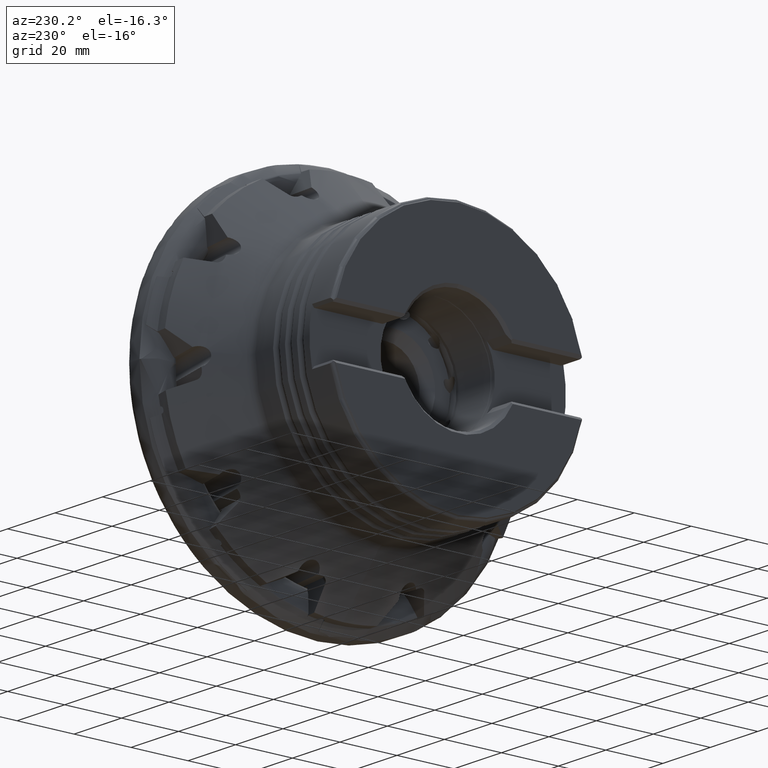
[diagram: clean part render]
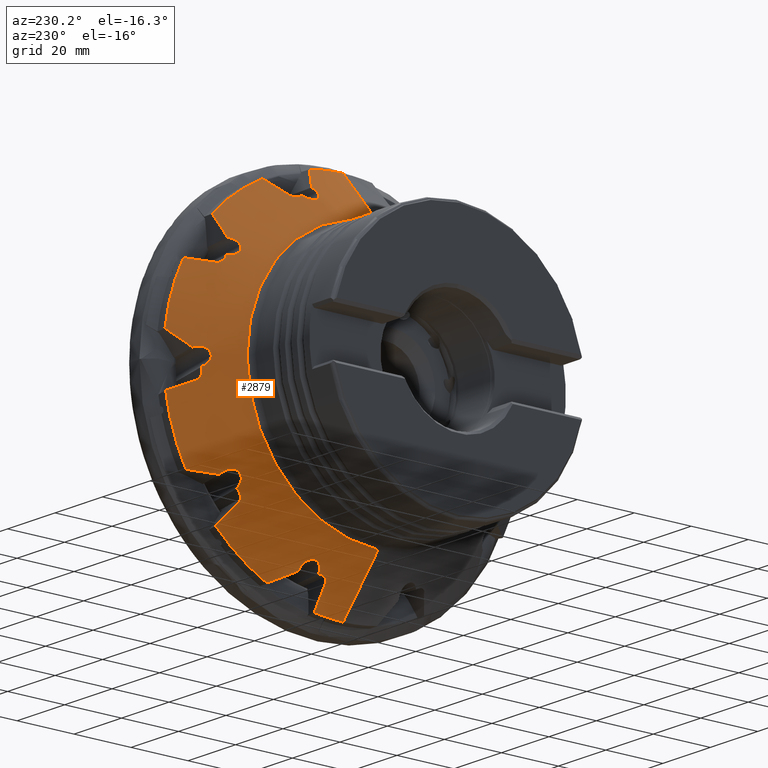
[diagram: same view with one face highlighted and labeled with its STEP entity id]
A machine part, auxiliary view. The second image highlights one B-rep face of the part: STEP entity #2879.
In plain terms, the highlighted conical surface has half-angle 49.034 deg.
Its self-contained STEP definition (entity closure, byte-faithful):
#65 = CARTESIAN_POINT ( 'NONE',  ( -21.74386118651283800, 16.04339773294403300, 50.91453725431838300 ) ) ;
#82 = B_SPLINE_CURVE_WITH_KNOTS ( 'NONE', 3,
 ( #12270, #8859, #3894, #15639 ),
 .UNSPECIFIED., .F., .F.,
 ( 4, 4 ),
 ( 3.121339337097913300E-007, 0.008827418438833294400 ),
 .UNSPECIFIED. ) ;
#109 = CARTESIAN_POINT ( 'NONE',  ( -13.35000000000000700, 0.0000000000000000000, -63.04999999999999700 ) ) ;
#136 = CARTESIAN_POINT ( 'NONE',  ( -19.89859256043911600, 14.61271218791838900, 53.54961580335304200 ) ) ;
#198 = CIRCLE ( 'NONE', #13339, 63.04999999999999700 ) ;
#209 = CARTESIAN_POINT ( 'NONE',  ( -19.90231856544033200, 41.52883945057612200, -36.82389208063981600 ) ) ;
#217 = CARTESIAN_POINT ( 'NONE',  ( -20.69135371984313600, 45.65459946876526200, 29.93691832556922000 ) ) ;
#230 = CARTESIAN_POINT ( 'NONE',  ( -19.20941039479254200, 55.91383833153550900, -6.594989782057939300 ) ) ;
#375 = CARTESIAN_POINT ( 'NONE',  ( -21.65841679445749400, 43.82773945495456000, 30.64882635201971800 ) ) ;
#440 = CARTESIAN_POINT ( 'NONE',  ( -20.63857241371391300, 42.80432881129125600, 33.98529018487500500 ) ) ;
#454 = CARTESIAN_POINT ( 'NONE',  ( -18.44073334643139000, 19.96071030435146200, -53.59000000000000300 ) ) ;
#507 = CARTESIAN_POINT ( 'NONE',  ( -13.35000000000000500, 44.79286903829155600, -44.37230423719803000 ) ) ;
#516 = CARTESIAN_POINT ( 'NONE',  ( -19.97434015540164900, 46.60667325391509100, 29.98721195677843800 ) ) ;
#534 = CARTESIAN_POINT ( 'NONE',  ( -13.35000000000001400, 56.04232684746164500, 28.88875389355310100 ) ) ;
#606 = VERTEX_POINT ( 'NONE', #9968 ) ;
#704 = CARTESIAN_POINT ( 'NONE',  ( -21.34086828716044300, 14.95440484867446600, -51.72850538226266100 ) ) ;
#720 = VERTEX_POINT ( 'NONE', #15776 ) ;
#752 = CARTESIAN_POINT ( 'NONE',  ( -19.97521079024968700, 42.92125795258418500, -35.05808526701827800 ) ) ;
#777 = CARTESIAN_POINT ( 'NONE',  ( -20.88982359493613600, 18.82371701613425000, -51.00330926966702800 ) ) ;
#829 = CARTESIAN_POINT ( 'NONE',  ( -20.90633496719939900, 42.51784085894156800, -33.85018861386016200 ) ) ;
#905 = CARTESIAN_POINT ( 'NONE',  ( -21.45821655185690000, 44.25871251706696100, -30.43181215891734200 ) ) ;
#948 = EDGE_LOOP ( 'NONE', ( #6383, #9013, #3974, #6417, #11046, #12414, #12389, #19420, #16570, #19164, #3589, #14215, #16195, #17394, #6657, #4590, #13672, #6851, #10019, #21547, #15287, #8376, #19086, #1160, #18291, #2234, #4838, #11149, #2415, #11744, #12659, #2381, #10503, #17223, #12007 ) ) ;
#1020 = CARTESIAN_POINT ( 'NONE',  ( -18.99064713345593300, 10.94954749432682900, -55.48320528741383100 ) ) ;
#1049 = VERTEX_POINT ( 'NONE', #18720 ) ;
#1086 = CARTESIAN_POINT ( 'NONE',  ( -20.03612008597187000, 13.77108990478864400, -53.60974634019604700 ) ) ;
#1160 = ORIENTED_EDGE ( 'NONE', *, *, #13433, .F. ) ;
#1198 = CIRCLE ( 'NONE', #20708, 63.04999999999999700 ) ;
#1299 = CARTESIAN_POINT ( 'NONE',  ( -13.35000000000000700, 0.0000000000000000000, 0.0000000000000000000 ) ) ;
#1303 = CARTESIAN_POINT ( 'NONE',  ( -20.52743768481045400, 54.71331254012212500, -2.770098029617899200 ) ) ;
#1344 = CARTESIAN_POINT ( 'NONE',  ( -19.97434015539970900, 14.11727925027747900, -53.59213840954560500 ) ) ;
#1363 = EDGE_CURVE ( 'NONE', #16347, #12104, #7236, .T. ) ;
#1370 = CARTESIAN_POINT ( 'NONE',  ( -21.72556196952026000, 53.40028063948220400, 0.5834179072206208100 ) ) ;
#1434 = B_SPLINE_CURVE_WITH_KNOTS ( 'NONE', 3,
 ( #3715, #5394, #17113, #7056 ),
 .UNSPECIFIED., .F., .F.,
 ( 4, 4 ),
 ( 0.002835019765368307600, 0.01203914730048213400 ),
 .UNSPECIFIED. ) ;
#1444 = CARTESIAN_POINT ( 'NONE',  ( -19.00710511929069900, 56.47190637251164700, 2.657156614032025300 ) ) ;
#1475 = CARTESIAN_POINT ( 'NONE',  ( -19.50004621453662400, 48.67981456278803900, 27.61437426249561600 ) ) ;
#1630 = VERTEX_POINT ( 'NONE', #20190 ) ;
#1642 = CARTESIAN_POINT ( 'NONE',  ( -13.35000000000000700, 0.0000000000000000000, 0.0000000000000000000 ) ) ;
#1651 = VERTEX_POINT ( 'NONE', #18244 ) ;
#1665 = CARTESIAN_POINT ( 'NONE',  ( -20.53561337606202700, 19.55076632876013700, 51.16647226779763000 ) ) ;
#1737 = EDGE_CURVE ( 'NONE', #8037, #7493, #6301, .T. ) ;
#1738 = CARTESIAN_POINT ( 'NONE',  ( -21.67668078558977700, 15.75528947944783000, 51.08539341113733900 ) ) ;
#1755 = CARTESIAN_POINT ( 'NONE',  ( -13.35000000000000700, 0.0000000000000000000, 0.0000000000000000000 ) ) ;
#1787 = CARTESIAN_POINT ( 'NONE',  ( -13.35000000000000100, 28.35881132817450000, 56.31234607129241000 ) ) ;
#1812 = CARTESIAN_POINT ( 'NONE',  ( -19.45252994709590100, 14.72935181097812100, 54.05032820218441700 ) ) ;
#1881 = CARTESIAN_POINT ( 'NONE',  ( -20.05983047317410600, 41.95095860176537200, -36.06593345004337400 ) ) ;
#1912 = CARTESIAN_POINT ( 'NONE',  ( -19.50004621453663100, 55.61411920709631600, -6.272779016950154100 ) ) ;
#1973 = B_SPLINE_CURVE_WITH_KNOTS ( 'NONE', 3,
 ( #13109, #12973, #16476, #6427 ),
 .UNSPECIFIED., .F., .F.,
 ( 4, 4 ),
 ( 0.01047602364731866700, 0.01048017639563251900 ),
 .UNSPECIFIED. ) ;
#2059 = CARTESIAN_POINT ( 'NONE',  ( -21.76737282378240600, 43.38731384836916000, 31.05412848423777200 ) ) ;
#2065 = CARTESIAN_POINT ( 'NONE',  ( -18.44073334643135500, 15.35085781433787000, 55.08783187073371600 ) ) ;
#2129 = CARTESIAN_POINT ( 'NONE',  ( -20.25928515037768200, 43.03146642781197100, 34.40119159271462500 ) ) ;
#2234 = ORIENTED_EDGE ( 'NONE', *, *, #8583, .F. ) ;
#2280 = CARTESIAN_POINT ( 'NONE',  ( -19.97434015540404300, 42.92178742375660500, -35.05902219240437700 ) ) ;
#2282 = DIRECTION ( 'NONE',  ( 0.6556070404901761500, 0.0000000000000000000, -0.7551022503341601200 ) ) ;
#2324 = VERTEX_POINT ( 'NONE', #17303 ) ;
#2335 = VECTOR ( 'NONE', #2282, 1000.000000000000000 ) ;
#2366 = CARTESIAN_POINT ( 'NONE',  ( -21.59155068313034000, 15.41533070848855200, -51.29170582731968200 ) ) ;
#2381 = ORIENTED_EDGE ( 'NONE', *, *, #12171, .F. ) ;
#2397 = VERTEX_POINT ( 'NONE', #6478 ) ;
#2415 = ORIENTED_EDGE ( 'NONE', *, *, #13092, .F. ) ;
#2437 = CARTESIAN_POINT ( 'NONE',  ( -20.48162059219455600, 19.24186106007117700, -51.34932930359635600 ) ) ;
#2502 = CARTESIAN_POINT ( 'NONE',  ( -21.23961793296908600, 42.49072575660184700, -33.26518153594526700 ) ) ;
#2563 = CARTESIAN_POINT ( 'NONE',  ( -21.13836656907219300, 44.83157954097322300, -30.24492683833995300 ) ) ;
#2581 = CARTESIAN_POINT ( 'NONE',  ( -15.08684794427566100, 45.60185275322876200, 40.61920425478874800 ) ) ;
#2768 = CARTESIAN_POINT ( 'NONE',  ( -19.40841971096545000, 23.29505547001471300, 51.00425811413801100 ) ) ;
#2791 = EDGE_CURVE ( 'NONE', #20985, #16313, #9688, .T. ) ;
#2829 = CARTESIAN_POINT ( 'NONE',  ( -16.78890962292948400, 14.17466574591519700, 57.39058254429944100 ) ) ;
#2862 = VERTEX_POINT ( 'NONE', #16366 ) ;
#2879 = ADVANCED_FACE ( 'NONE', ( #3637 ), #16497, .T. ) ;
#2885 = DIRECTION ( 'NONE',  ( 0.6556070404901761500, 9.247335539006924900E-017, 0.7551022503341601200 ) ) ;
#2951 = AXIS2_PLACEMENT_3D ( 'NONE', #13899, #3860, #15602 ) ;
#2966 = CARTESIAN_POINT ( 'NONE',  ( -20.90982845360525400, 54.29044625568258900, -2.390088407942447800 ) ) ;
#2974 = CARTESIAN_POINT ( 'NONE',  ( -19.97434015540198600, 20.07954976813440200, 51.65487928402242800 ) ) ;
#3040 = CARTESIAN_POINT ( 'NONE',  ( -21.64754709247094400, 53.48563702216268500, 0.9059112994876618000 ) ) ;
#3105 = CARTESIAN_POINT ( 'NONE',  ( -18.44073334643135100, 57.13531741209702400, 2.423542876279996000 ) ) ;
#3136 = CARTESIAN_POINT ( 'NONE',  ( -19.73284088392446000, 48.25366821558832700, 27.81956612474707700 ) ) ;
#3269 = CARTESIAN_POINT ( 'NONE',  ( -19.97608142302276900, 20.07809486054620500, 51.65329311670095800 ) ) ;
#3281 = B_SPLINE_CURVE_WITH_KNOTS ( 'NONE', 3,
 ( #14561, #2829, #17895, #7845 ),
 .UNSPECIFIED., .F., .F.,
 ( 4, 4 ),
 ( 0.002286285594767394900, 0.01149046612284418700 ),
 .UNSPECIFIED. ) ;
#3317 = DIRECTION ( 'NONE',  ( 0.0000000000000000000, 0.0000000000000000000, -1.000000000000000000 ) ) ;
#3339 = CARTESIAN_POINT ( 'NONE',  ( -21.02415140546714800, 18.87761035921077400, 50.81845775117771100 ) ) ;
#3399 = CARTESIAN_POINT ( 'NONE',  ( -21.54487732028242800, 15.41267720426602500, 51.34860011372974500 ) ) ;
#3415 = DIRECTION ( 'NONE',  ( 0.0000000000000000000, 0.0000000000000000000, -1.000000000000000000 ) ) ;
#3445 = DIRECTION ( 'NONE',  ( 1.000000000000000000, -0.0000000000000000000, -0.0000000000000000000 ) ) ;
#3473 = CARTESIAN_POINT ( 'NONE',  ( -19.01147160084910200, 14.93684362539066700, 54.52026838322175500 ) ) ;
#3507 = CARTESIAN_POINT ( 'NONE',  ( -19.97608142302275500, 42.92072848016083200, -35.05714834040598800 ) ) ;
#3508 = EDGE_CURVE ( 'NONE', #6055, #18425, #15168, .T. ) ;
#3526 = CARTESIAN_POINT ( 'NONE',  ( -18.44073334643136200, 47.64796552636914800, -31.62260958637319100 ) ) ;
#3533 = B_SPLINE_CURVE_WITH_KNOTS ( 'NONE', 3,
 ( #13009, #2974, #4644, #16380 ),
 .UNSPECIFIED., .F., .F.,
 ( 4, 4 ),
 ( 0.01047601585579586800, 0.01048016861513262900 ),
 .UNSPECIFIED. ) ;
#3552 = CARTESIAN_POINT ( 'NONE',  ( -20.03612008597185900, 42.65206404194696400, -35.27675229932018700 ) ) ;
#3578 = CARTESIAN_POINT ( 'NONE',  ( -19.73284088392446700, 55.38996832064278000, -5.856292775078964400 ) ) ;
#3589 = ORIENTED_EDGE ( 'NONE', *, *, #6739, .F. ) ;
#3634 = CARTESIAN_POINT ( 'NONE',  ( -20.69135371984313600, 45.65459946876526200, 29.93691832556922000 ) ) ;
#3637 = FACE_OUTER_BOUND ( 'NONE', #948, .T. ) ;
#3711 = CARTESIAN_POINT ( 'NONE',  ( -21.77648194941602700, 43.02601140273384300, 31.53506828006258200 ) ) ;
#3715 = CARTESIAN_POINT ( 'NONE',  ( -18.44073334643136200, 47.64796552636914800, -31.62260958637319100 ) ) ;
#3790 = CARTESIAN_POINT ( 'NONE',  ( -19.86966198548530500, 43.32155495392783000, 34.75681893210628500 ) ) ;
#3860 = DIRECTION ( 'NONE',  ( 1.000000000000000000, -0.0000000000000000000, -0.0000000000000000000 ) ) ;
#3867 = CARTESIAN_POINT ( 'NONE',  ( -19.97608142302276200, 46.60456388319135400, 29.98678389368314600 ) ) ;
#3894 = CARTESIAN_POINT ( 'NONE',  ( -17.11612810928735900, 10.68610102600469600, -57.73583418795109200 ) ) ;
#3974 = ORIENTED_EDGE ( 'NONE', *, *, #8924, .F. ) ;
#4037 = CARTESIAN_POINT ( 'NONE',  ( -21.74792170244602100, 15.97403961193364500, -50.93180896222644100 ) ) ;
#4092 = CARTESIAN_POINT ( 'NONE',  ( -18.99064713345593300, 10.94954749432682900, -55.48320528741383100 ) ) ;
#4110 = CARTESIAN_POINT ( 'NONE',  ( -19.90077883406650700, 19.66983040990643500, -51.90298283629486100 ) ) ;
#4122 = EDGE_CURVE ( 'NONE', #8948, #16347, #19410, .T. ) ;
#4158 = CARTESIAN_POINT ( 'NONE',  ( -21.51626998079220200, 42.56805075299013900, -32.64533361676173900 ) ) ;
#4228 = CARTESIAN_POINT ( 'NONE',  ( -20.75533101815819100, 45.39452432258878600, -30.19710861624894000 ) ) ;
#4286 = CARTESIAN_POINT ( 'NONE',  ( -19.10345522746496600, 10.96540163802004600, -55.34764263400623500 ) ) ;
#4357 = CARTESIAN_POINT ( 'NONE',  ( -19.40841971096545400, 11.13345496345974400, -54.95580165643376300 ) ) ;
#4363 = CARTESIAN_POINT ( 'NONE',  ( -19.10345522746496300, 23.66133181411761700, 51.22248485779447700 ) ) ;
#4372 = B_SPLINE_CURVE_WITH_KNOTS ( 'NONE', 3,
 ( #11107, #4363, #12803, #2768, #14497, #4432, #16175, #6107, #17824, #7785, #19557, #9500, #21258, #11181 ),
 .UNSPECIFIED., .F., .F.,
 ( 4, 2, 2, 2, 2, 2, 4 ),
 ( 0.0000000000000000000, 0.0005231231120398812900, 0.001046246224079762600, 0.001569369336119644000, 0.002092492448159525200, 0.003138738672239288000, 0.004184984896319050300 ),
 .UNSPECIFIED. ) ;
#4432 = CARTESIAN_POINT ( 'NONE',  ( -19.66152806718338300, 22.84838025834494200, 50.88659782093385800 ) ) ;
#4471 = EDGE_CURVE ( 'NONE', #9770, #1049, #15689, .T. ) ;
#4478 = EDGE_CURVE ( 'NONE', #15788, #2862, #16348, .T. ) ;
#4590 = ORIENTED_EDGE ( 'NONE', *, *, #5264, .F. ) ;
#4637 = CARTESIAN_POINT ( 'NONE',  ( -21.24353716862449200, 53.92421518114441200, -1.930317377156453900 ) ) ;
#4644 = CARTESIAN_POINT ( 'NONE',  ( -19.97521079024763000, 20.07882231473097800, 51.65408620114693900 ) ) ;
#4700 = CARTESIAN_POINT ( 'NONE',  ( -21.45631560920434900, 53.69551324087111500, 1.398511436616029400 ) ) ;
#4768 = B_SPLINE_CURVE_WITH_KNOTS ( 'NONE', 3,
 ( #3634, #13682, #17027, #6981, #18751, #8671, #20457, #10383, #375, #12074, #2059, #13765, #3711, #15448, #5392, #17110, #7053, #18819, #8753, #20532, #10452, #440, #12159, #2129, #13836, #3790, #15525, #5462, #17185, #7135, #18889, #8823 ),
 .UNSPECIFIED., .F., .F.,
 ( 4, 2, 2, 2, 2, 2, 2, 2, 2, 2, 2, 2, 2, 2, 2, 4 ),
 ( 0.002507057625006348800, 0.003108497944117770900, 0.003709938263229193100, 0.004311378582340616100, 0.004912818901452037400, 0.005514259220563460400, 0.006115699539674882500, 0.006717139858786304700, 0.007318580177897726800, 0.007920020497009149000, 0.008521460816120572000, 0.009122901135231993200, 0.009724341454343416200, 0.01032578177345483800, 0.01092722209256626100, 0.01213010273078910500 ),
 .UNSPECIFIED. ) ;
#4789 = VERTEX_POINT ( 'NONE', #3526 ) ;
#4809 = CARTESIAN_POINT ( 'NONE',  ( -19.90231856544033900, 47.85471966553866700, 28.11706492169907900 ) ) ;
#4838 = ORIENTED_EDGE ( 'NONE', *, *, #4478, .F. ) ;
#4918 = CARTESIAN_POINT ( 'NONE',  ( -19.97608142302276200, 55.32967353332311000, -3.133657563423770200 ) ) ;
#5008 = CARTESIAN_POINT ( 'NONE',  ( -21.34354310661564100, 18.30104796941145700, 50.63804662643738700 ) ) ;
#5083 = CARTESIAN_POINT ( 'NONE',  ( -21.25216564580258400, 15.01186988349278600, 51.81816433069998600 ) ) ;
#5156 = CARTESIAN_POINT ( 'NONE',  ( -18.57938712507261100, 15.23065985382062200, 54.95554601521173800 ) ) ;
#5159 = CARTESIAN_POINT ( 'NONE',  ( -18.99064713345594100, 41.47057982148372400, -38.45087344347038500 ) ) ;
#5247 = CARTESIAN_POINT ( 'NONE',  ( -19.90231856544033200, 55.24207756919448500, -5.381115118396055100 ) ) ;
#5264 = EDGE_CURVE ( 'NONE', #12104, #7878, #198, .T. ) ;
#5392 = CARTESIAN_POINT ( 'NONE',  ( -21.67783232999739000, 42.76564279759925600, 32.07686751721122700 ) ) ;
#5394 = CARTESIAN_POINT ( 'NONE',  ( -16.78894256298035600, 50.20142397652969600, -31.21558166418576300 ) ) ;
#5462 = CARTESIAN_POINT ( 'NONE',  ( -19.47138546195075300, 43.66921415259072600, 35.05650214969485700 ) ) ;
#5465 = CARTESIAN_POINT ( 'NONE',  ( -19.97346951848618300, 46.60772793694374600, 29.98742598710915200 ) ) ;
#5472 = CARTESIAN_POINT ( 'NONE',  ( -20.11759181284637800, 42.83466940755767600, -34.90486272212639600 ) ) ;
#5578 = DIRECTION ( 'NONE',  ( 1.000000000000000000, -0.0000000000000000000, -0.0000000000000000000 ) ) ;
#5641 = CARTESIAN_POINT ( 'NONE',  ( -20.26263166719891000, 14.15779597998335900, -53.23809372572897300 ) ) ;
#5652 = EDGE_CURVE ( 'NONE', #7990, #2397, #4372, .T. ) ;
#5707 = CARTESIAN_POINT ( 'NONE',  ( -21.78320916321693100, 16.60942762327655200, -50.68538535005829000 ) ) ;
#5728 = CARTESIAN_POINT ( 'NONE',  ( -19.97608142302276900, 14.11752396948266300, -53.58999999999999600 ) ) ;
#5767 = CARTESIAN_POINT ( 'NONE',  ( -19.00856150071704300, 19.97767081737112700, -52.88515560446970200 ) ) ;
#5830 = CARTESIAN_POINT ( 'NONE',  ( -21.70708707510918200, 42.76487328582514600, -32.02189307684115200 ) ) ;
#5902 = CARTESIAN_POINT ( 'NONE',  ( -20.33588710482505800, 45.92572958228279100, -30.26982026895317500 ) ) ;
#5970 = CARTESIAN_POINT ( 'NONE',  ( -28.12461857524718000, 5.637438516816864000E-015, 46.03317887852945500 ) ) ;
#6015 = CARTESIAN_POINT ( 'NONE',  ( -19.66152806718339700, 11.42566381554079600, -54.59806337768437600 ) ) ;
#6055 = VERTEX_POINT ( 'NONE', #20589 ) ;
#6107 = CARTESIAN_POINT ( 'NONE',  ( -19.85266368413967800, 22.35742450236248400, 50.86389474427858200 ) ) ;
#6140 = CARTESIAN_POINT ( 'NONE',  ( -13.35000000000000100, 28.35881132817450000, 56.31234607129241000 ) ) ;
#6251 = CARTESIAN_POINT ( 'NONE',  ( -13.34999999999999800, 10.15680623792937200, -62.22653603604461400 ) ) ;
#6274 = CARTESIAN_POINT ( 'NONE',  ( -15.08667361793736300, 24.53963746296229000, -55.92207932306290300 ) ) ;
#6301 = B_SPLINE_CURVE_WITH_KNOTS ( 'NONE', 3,
 ( #18462, #21443, #2581, #6510 ),
 .UNSPECIFIED., .F., .F.,
 ( 4, 4 ),
 ( 0.003328618776040359800, 0.01253268762534390200 ),
 .UNSPECIFIED. ) ;
#6310 = CARTESIAN_POINT ( 'NONE',  ( -21.51911537996793200, 53.62362639182279600, -1.382778788523909300 ) ) ;
#6360 = CARTESIAN_POINT ( 'NONE',  ( -19.97608142302276900, 14.11752396948266300, -53.58999999999999600 ) ) ;
#6383 = ORIENTED_EDGE ( 'NONE', *, *, #14381, .T. ) ;
#6387 = CARTESIAN_POINT ( 'NONE',  ( -21.13630166553763300, 54.04932429934591200, 1.885163769183408000 ) ) ;
#6417 = ORIENTED_EDGE ( 'NONE', *, *, #13993, .F. ) ;
#6420 = CARTESIAN_POINT ( 'NONE',  ( -19.10345522746495600, 49.25024073235191200, 27.53207885413204500 ) ) ;
#6427 = CARTESIAN_POINT ( 'NONE',  ( -19.97608142302276200, 55.32967353332311000, -3.133657563423770200 ) ) ;
#6478 = CARTESIAN_POINT ( 'NONE',  ( -19.97346951848619800, 20.08027722075661700, 51.65567236532769600 ) ) ;
#6487 = CARTESIAN_POINT ( 'NONE',  ( -20.05983047317412400, 47.26430016219637800, 28.75274618897806500 ) ) ;
#6510 = CARTESIAN_POINT ( 'NONE',  ( -13.35000000000000500, 46.00217297085964700, 43.11731185914899100 ) ) ;
#6657 = ORIENTED_EDGE ( 'NONE', *, *, #14146, .F. ) ;
#6671 = CARTESIAN_POINT ( 'NONE',  ( -18.99064713345593000, 49.38406767707392200, 27.55889183116783100 ) ) ;
#6684 = CARTESIAN_POINT ( 'NONE',  ( -21.59309904167061600, 17.67262955507670300, 50.55649587263597100 ) ) ;
#6733 = B_SPLINE_CURVE_WITH_KNOTS ( 'NONE', 3,
 ( #15214, #18584, #8513, #20314, #10227, #217 ),
 .UNSPECIFIED., .F., .F.,
 ( 4, 2, 4 ),
 ( 0.001315836186223862000, 0.001911446905615105300, 0.002507057625006348800 ),
 .UNSPECIFIED. ) ;
#6739 = EDGE_CURVE ( 'NONE', #1630, #8037, #4768, .T. ) ;
#6749 = CARTESIAN_POINT ( 'NONE',  ( -20.88646660218183000, 14.74867662804371300, 52.33131562543028500 ) ) ;
#6797 = CARTESIAN_POINT ( 'NONE',  ( -17.11612710405497500, 25.29103535517391100, 52.99040452431067600 ) ) ;
#6815 = CARTESIAN_POINT ( 'NONE',  ( -19.40841971096543300, 41.30936401310913200, -37.91609684496970100 ) ) ;
#6819 = CIRCLE ( 'NONE', #17183, 63.04999999999999700 ) ;
#6841 = CARTESIAN_POINT ( 'NONE',  ( -19.10345522746495900, 56.02723164494219800, -6.674645490866636200 ) ) ;
#6851 = ORIENTED_EDGE ( 'NONE', *, *, #4122, .F. ) ;
#6878 = B_SPLINE_CURVE_WITH_KNOTS ( 'NONE', 3,
 ( #13047, #1344, #16414, #6360 ),
 .UNSPECIFIED., .F., .F.,
 ( 4, 4 ),
 ( 0.01047602528567821400, 0.01048017802458830900 ),
 .UNSPECIFIED. ) ;
#6921 = CARTESIAN_POINT ( 'NONE',  ( -20.05983047317412400, 55.13806223124536400, -4.519798293431112100 ) ) ;
#6981 = CARTESIAN_POINT ( 'NONE',  ( -21.11712656453835600, 44.98450210740227100, 30.06107003837615800 ) ) ;
#7035 = CARTESIAN_POINT ( 'NONE',  ( -13.35000000000000700, 7.721398068624060900E-015, 63.04999999999999700 ) ) ;
#7053 = CARTESIAN_POINT ( 'NONE',  ( -21.48018656250288000, 42.62745048092065800, 32.63597838075858700 ) ) ;
#7056 = CARTESIAN_POINT ( 'NONE',  ( -13.35000000000000700, 55.22245363494535300, -30.42668425143151700 ) ) ;
#7135 = CARTESIAN_POINT ( 'NONE',  ( -18.94738974659792800, 44.19264767465931200, 35.36846850384782900 ) ) ;
#7209 = CARTESIAN_POINT ( 'NONE',  ( -18.99064713345594100, 41.47057982148372400, -38.45087344347038500 ) ) ;
#7236 = B_SPLINE_CURVE_WITH_KNOTS ( 'NONE', 3,
 ( #7827, #13999, #18991, #19679 ),
 .UNSPECIFIED., .F., .F.,
 ( 4, 4 ),
 ( 0.001517270967942892100, 0.01072150513321955800 ),
 .UNSPECIFIED. ) ;
#7354 = AXIS2_PLACEMENT_3D ( 'NONE', #18790, #8719, #20493 ) ;
#7388 = CARTESIAN_POINT ( 'NONE',  ( -21.68367675954719000, 17.27450718731626700, -50.58365384261152500 ) ) ;
#7403 = B_SPLINE_CURVE_WITH_KNOTS ( 'NONE', 3,
 ( #7930, #19625, #9639, #21403 ),
 .UNSPECIFIED., .F., .F.,
 ( 4, 4 ),
 ( 3.121342850875859700E-007, 0.008827420336520090300 ),
 .UNSPECIFIED. ) ;
#7463 = CARTESIAN_POINT ( 'NONE',  ( -18.44073334643139000, 19.96071030435146200, -53.59000000000000300 ) ) ;
#7493 = VERTEX_POINT ( 'NONE', #10351 ) ;
#7520 = CARTESIAN_POINT ( 'NONE',  ( -21.78590893963995300, 43.09040125889462300, -31.42877414066234800 ) ) ;
#7587 = CARTESIAN_POINT ( 'NONE',  ( -19.60273738805102500, 46.71996903869180800, -30.59875404593580600 ) ) ;
#7711 = CARTESIAN_POINT ( 'NONE',  ( -19.85266368413967400, 11.80951083197717800, -54.29111964995107100 ) ) ;
#7785 = CARTESIAN_POINT ( 'NONE',  ( -20.02111024959089400, 21.67867859206794600, 50.94694663087509000 ) ) ;
#7827 = CARTESIAN_POINT ( 'NONE',  ( -18.44073334643135100, 57.13531741209702400, 2.423542876279996000 ) ) ;
#7845 = CARTESIAN_POINT ( 'NONE',  ( -13.35000000000001400, 11.87281968229809700, 61.92203689149473400 ) ) ;
#7878 = VERTEX_POINT ( 'NONE', #534 ) ;
#7930 = CARTESIAN_POINT ( 'NONE',  ( -13.35000000000000900, 62.31957831964911100, -9.569360378892694600 ) ) ;
#7990 = VERTEX_POINT ( 'NONE', #14588 ) ;
#8001 = CARTESIAN_POINT ( 'NONE',  ( -21.70828730117095900, 53.41820522054889200, -0.7638170514467558200 ) ) ;
#8035 = EDGE_CURVE ( 'NONE', #2324, #8948, #1973, .T. ) ;
#8037 = VERTEX_POINT ( 'NONE', #18153 ) ;
#8058 = DIRECTION ( 'NONE',  ( 1.000000000000000000, -0.0000000000000000000, -0.0000000000000000000 ) ) ;
#8060 = CARTESIAN_POINT ( 'NONE',  ( -20.75267380948689000, 54.47733606565390100, 2.254269217636333300 ) ) ;
#8164 = CARTESIAN_POINT ( 'NONE',  ( -20.03612008597185900, 46.73039778212861300, 29.66340747368657900 ) ) ;
#8314 = VERTEX_POINT ( 'NONE', #20910 ) ;
#8363 = CARTESIAN_POINT ( 'NONE',  ( -21.74846742658081000, 17.01126987723033300, 50.59417041166047800 ) ) ;
#8376 = ORIENTED_EDGE ( 'NONE', *, *, #4471, .F. ) ;
#8436 = CARTESIAN_POINT ( 'NONE',  ( -20.47867870369587700, 14.61479573620986400, 52.85624122907606200 ) ) ;
#8461 = CARTESIAN_POINT ( 'NONE',  ( -18.99064713345592600, 56.15126018999927000, -6.731614841241849900 ) ) ;
#8504 = CARTESIAN_POINT ( 'NONE',  ( -19.66152806718338300, 41.33549265592012000, -37.45492444408043300 ) ) ;
#8513 = CARTESIAN_POINT ( 'NONE',  ( -20.22596396353157600, 46.29496691046390600, 29.93590477214557700 ) ) ;
#8583 = EDGE_CURVE ( 'NONE', #2862, #606, #11078, .T. ) ;
#8600 = CARTESIAN_POINT ( 'NONE',  ( -20.03612008597186600, 55.24139940541870400, -3.469237892814922100 ) ) ;
#8671 = CARTESIAN_POINT ( 'NONE',  ( -21.38804070220182000, 44.47889534340417600, 30.25294858023963900 ) ) ;
#8719 = DIRECTION ( 'NONE',  ( 1.000000000000000000, -0.0000000000000000000, -0.0000000000000000000 ) ) ;
#8753 = CARTESIAN_POINT ( 'NONE',  ( -21.20484761855316000, 42.60930637429697000, 33.17824159162052000 ) ) ;
#8810 = CARTESIAN_POINT ( 'NONE',  ( -18.44073334643135100, 57.13531741209702400, 2.423542876279996000 ) ) ;
#8820 = CARTESIAN_POINT ( 'NONE',  ( -15.23532382762473800, 43.68857797828906100, -42.40159263091121700 ) ) ;
#8823 = CARTESIAN_POINT ( 'NONE',  ( -18.44073334643136900, 44.79892000441740400, 35.54398433338690200 ) ) ;
#8859 = CARTESIAN_POINT ( 'NONE',  ( -15.23532434170034800, 10.42177129459664500, -59.98311024451881900 ) ) ;
#8864 = VERTEX_POINT ( 'NONE', #17739 ) ;
#8907 = CARTESIAN_POINT ( 'NONE',  ( -19.97346951848619100, 42.92231689367831400, -35.05995911656449200 ) ) ;
#8924 = EDGE_CURVE ( 'NONE', #20506, #16313, #6819, .T. ) ;
#8936 = CARTESIAN_POINT ( 'NONE',  ( -28.12461857524718000, 0.0000000000000000000, 0.0000000000000000000 ) ) ;
#8948 = VERTEX_POINT ( 'NONE', #4918 ) ;
#9007 = CARTESIAN_POINT ( 'NONE',  ( -20.90567072197036700, 14.50042067859535100, -52.37769730490502700 ) ) ;
#9013 = ORIENTED_EDGE ( 'NONE', *, *, #2791, .T. ) ;
#9085 = CARTESIAN_POINT ( 'NONE',  ( -21.45952414397763900, 17.91594255719715200, -50.63384602015843700 ) ) ;
#9134 = CARTESIAN_POINT ( 'NONE',  ( -20.25611204235051200, 42.76025802160668100, -34.74360048917031200 ) ) ;
#9182 = CARTESIAN_POINT ( 'NONE',  ( -13.35000000000001000, 62.56025974090445600, 7.843239200137166000 ) ) ;
#9212 = CARTESIAN_POINT ( 'NONE',  ( -21.73225854394550200, 43.53605501748877800, -30.91531079899539900 ) ) ;
#9292 = CARTESIAN_POINT ( 'NONE',  ( -18.71962377316070600, 47.46961706769670300, -31.31045063608626900 ) ) ;
#9364 = EDGE_CURVE ( 'NONE', #8314, #15323, #6878, .T. ) ;
#9385 = CARTESIAN_POINT ( 'NONE',  ( -13.35000000000001400, 11.87281968229809700, 61.92203689149473400 ) ) ;
#9412 = CARTESIAN_POINT ( 'NONE',  ( -20.02111024959088000, 12.40744448238445100, -53.95935320149755700 ) ) ;
#9500 = CARTESIAN_POINT ( 'NONE',  ( -20.06723134908523300, 20.68304017029406000, 51.30207864947018200 ) ) ;
#9514 = VERTEX_POINT ( 'NONE', #2065 ) ;
#9522 = EDGE_CURVE ( 'NONE', #4789, #9770, #1434, .T. ) ;
#9554 = CARTESIAN_POINT ( 'NONE',  ( -13.35000000000000700, 7.721398068624060900E-015, 63.04999999999999700 ) ) ;
#9567 = EDGE_CURVE ( 'NONE', #17840, #720, #15388, .T. ) ;
#9639 = CARTESIAN_POINT ( 'NONE',  ( -17.11612620554344500, 58.21223024193012900, -7.678268895332713000 ) ) ;
#9688 = LINE ( 'NONE', #9554, #18063 ) ;
#9698 = CARTESIAN_POINT ( 'NONE',  ( -21.78600952909715700, 53.33413064848547000, -0.09217510615056140300 ) ) ;
#9770 = VERTEX_POINT ( 'NONE', #11326 ) ;
#9772 = CARTESIAN_POINT ( 'NONE',  ( -20.33425156475378900, 54.94870020051838800, 2.506436998759388900 ) ) ;
#9968 = CARTESIAN_POINT ( 'NONE',  ( -19.97346951848619100, 42.92231689367831400, -35.05995911656449200 ) ) ;
#10019 = ORIENTED_EDGE ( 'NONE', *, *, #8035, .F. ) ;
#10080 = CARTESIAN_POINT ( 'NONE',  ( -21.78311262737845800, 16.35067776343201400, 50.76957014578800900 ) ) ;
#10143 = CARTESIAN_POINT ( 'NONE',  ( -20.04497373779770400, 14.59559703924509200, 53.37953678941570200 ) ) ;
#10214 = CARTESIAN_POINT ( 'NONE',  ( -19.85266368413966000, 41.46561441901194200, -36.98098213662961300 ) ) ;
#10227 = CARTESIAN_POINT ( 'NONE',  ( -20.58019563243228900, 45.81743938507158700, 29.92206068253791400 ) ) ;
#10351 = CARTESIAN_POINT ( 'NONE',  ( -13.35000000000000500, 46.00217297085964700, 43.11731185914899100 ) ) ;
#10383 = CARTESIAN_POINT ( 'NONE',  ( -21.60282925323140200, 43.98503429068672700, 30.53496729869939600 ) ) ;
#10400 = B_SPLINE_CURVE_WITH_KNOTS ( 'NONE', 3,
 ( #16468, #6420, #21564, #11488, #1475, #13172, #3136, #14871, #4809, #16534, #6487, #18225, #8164, #19949 ),
 .UNSPECIFIED., .F., .F.,
 ( 4, 2, 2, 2, 2, 2, 4 ),
 ( 0.0000000000000000000, 0.0005231231120398803200, 0.001046246224079760600, 0.001569369336119640900, 0.002092492448159521300, 0.003138738672239281900, 0.004184984896319042500 ),
 .UNSPECIFIED. ) ;
#10452 = CARTESIAN_POINT ( 'NONE',  ( -20.87732923322530700, 42.69639479958456000, 33.67854814551428400 ) ) ;
#10503 = ORIENTED_EDGE ( 'NONE', *, *, #14378, .F. ) ;
#10641 = DIRECTION ( 'NONE',  ( 0.0000000000000000000, 0.0000000000000000000, -1.000000000000000000 ) ) ;
#10713 = CARTESIAN_POINT ( 'NONE',  ( -21.24147652128413100, 14.82514092301687600, -51.88466451272773100 ) ) ;
#10781 = CARTESIAN_POINT ( 'NONE',  ( -21.13941464831962900, 18.49033933945728600, -50.81931540939821400 ) ) ;
#10846 = CARTESIAN_POINT ( 'NONE',  ( -20.65881166813357700, 42.58656356555239600, -34.22068372302915400 ) ) ;
#10853 = EDGE_CURVE ( 'NONE', #1651, #2324, #11871, .T. ) ;
#10918 = CARTESIAN_POINT ( 'NONE',  ( -21.54658099310332300, 44.06884393102382800, -30.52796061557036100 ) ) ;
#10966 = CIRCLE ( 'NONE', #7354, 63.04999999999999700 ) ;
#11046 = ORIENTED_EDGE ( 'NONE', *, *, #11153, .F. ) ;
#11078 = B_SPLINE_CURVE_WITH_KNOTS ( 'NONE', 3,
 ( #5159, #15205, #16873, #6815, #18574, #8504, #20307, #10214, #209, #11915, #1881, #13593, #3552, #15296 ),
 .UNSPECIFIED., .F., .F.,
 ( 4, 2, 2, 2, 2, 2, 4 ),
 ( 0.0000000000000000000, 0.0005231231120398809700, 0.001046246224079761900, 0.001569369336119643100, 0.002092492448159523900, 0.003138738672239283600, 0.004184984896319043400 ),
 .UNSPECIFIED. ) ;
#11102 = CARTESIAN_POINT ( 'NONE',  ( -20.06723134908524700, 13.42167424899921900, -53.66143945885325900 ) ) ;
#11107 = CARTESIAN_POINT ( 'NONE',  ( -18.99064713345593700, 23.75383981423130600, 51.32283851635319400 ) ) ;
#11149 = ORIENTED_EDGE ( 'NONE', *, *, #12560, .F. ) ;
#11153 = EDGE_CURVE ( 'NONE', #11275, #9514, #14840, .T. ) ;
#11181 = CARTESIAN_POINT ( 'NONE',  ( -19.97346951848619800, 20.08027722075661700, 51.65567236532769600 ) ) ;
#11275 = VERTEX_POINT ( 'NONE', #12350 ) ;
#11299 = CARTESIAN_POINT ( 'NONE',  ( -20.25662615080661100, 55.01497642928858800, -2.973986364418966600 ) ) ;
#11326 = CARTESIAN_POINT ( 'NONE',  ( -13.35000000000000700, 55.22245363494535300, -30.42668425143151700 ) ) ;
#11377 = CARTESIAN_POINT ( 'NONE',  ( -21.74404826486111000, 53.38008045420781400, 0.4737894037245713500 ) ) ;
#11454 = CARTESIAN_POINT ( 'NONE',  ( -19.60174053003910500, 55.78389356797521300, 2.706423028836474100 ) ) ;
#11488 = CARTESIAN_POINT ( 'NONE',  ( -19.40841971096544300, 48.82564648375804200, 27.57082154321414100 ) ) ;
#11526 = CARTESIAN_POINT ( 'NONE',  ( -13.35000000000001400, 56.04232684746164500, 28.88875389355310100 ) ) ;
#11612 = VERTEX_POINT ( 'NONE', #4092 ) ;
#11672 = CARTESIAN_POINT ( 'NONE',  ( -15.23532410075815600, 53.82682370731941300, 28.44749399847896900 ) ) ;
#11744 = ORIENTED_EDGE ( 'NONE', *, *, #20418, .F. ) ;
#11757 = CARTESIAN_POINT ( 'NONE',  ( -21.72485452447773100, 15.94345962672067300, 50.96884699495476700 ) ) ;
#11808 = CARTESIAN_POINT ( 'NONE',  ( -15.23532343504049000, 26.82579823677608700, 54.65311983093961600 ) ) ;
#11828 = CARTESIAN_POINT ( 'NONE',  ( -19.60276060924874000, 14.67931798406870300, 53.88462079213243800 ) ) ;
#11871 = B_SPLINE_CURVE_WITH_KNOTS ( 'NONE', 3,
 ( #8461, #6841, #230, #11939, #1912, #13617, #3578, #15324, #5247, #16969, #6921, #18678, #8600, #20403 ),
 .UNSPECIFIED., .F., .F.,
 ( 4, 2, 2, 2, 2, 2, 4 ),
 ( 0.0000000000000000000, 0.0005231231120398779300, 0.001046246224079755900, 0.001569369336119633800, 0.002092492448159511700, 0.003138738672239270200, 0.004184984896319029500 ),
 .UNSPECIFIED. ) ;
#11915 = CARTESIAN_POINT ( 'NONE',  ( -20.02111024959088700, 41.75434547809365400, -36.36112086010852800 ) ) ;
#11926 = EDGE_CURVE ( 'NONE', #720, #1630, #6733, .T. ) ;
#11939 = CARTESIAN_POINT ( 'NONE',  ( -19.40841971096545000, 55.70650006339251800, -6.393731759459756200 ) ) ;
#12007 = ORIENTED_EDGE ( 'NONE', *, *, #3508, .F. ) ;
#12021 = B_SPLINE_CURVE_WITH_KNOTS ( 'NONE', 3,
 ( #17194, #5472, #9134, #20924, #10846, #829, #12537, #2502, #14212, #4158, #15908, #5830, #17550, #7520, #19287, #9212, #20990, #10918, #905, #12603, #2563, #14290, #4228, #15970, #5902, #17633, #7587, #19349, #9292, #21058 ),
 .UNSPECIFIED., .F., .F.,
 ( 4, 2, 2, 2, 2, 2, 2, 2, 2, 2, 2, 2, 2, 2, 4 ),
 ( 0.02047077265508376700, 0.02114407470549350300, 0.02181737675590324200, 0.02249067880631297800, 0.02316398085672271800, 0.02383728290713245400, 0.02451058495754219000, 0.02518388700795192900, 0.02585718905836166500, 0.02653049110877140500, 0.02720379315918114100, 0.02787709520959087700, 0.02855039726000061600, 0.02989700136082009500, 0.03124360546163957800 ),
 .UNSPECIFIED. ) ;
#12074 = CARTESIAN_POINT ( 'NONE',  ( -21.74070689587469500, 43.52973619821129600, 30.90719517874111600 ) ) ;
#12104 = VERTEX_POINT ( 'NONE', #9182 ) ;
#12159 = CARTESIAN_POINT ( 'NONE',  ( -20.51279883907380600, 42.87302567755096300, 34.13159268612619700 ) ) ;
#12171 = EDGE_CURVE ( 'NONE', #11612, #8314, #19129, .T. ) ;
#12270 = CARTESIAN_POINT ( 'NONE',  ( -13.34999999999999800, 10.15680623792937200, -62.22653603604461400 ) ) ;
#12294 = EDGE_CURVE ( 'NONE', #2397, #11275, #3533, .T. ) ;
#12350 = CARTESIAN_POINT ( 'NONE',  ( -19.97608142302276900, 20.07809486054620500, 51.65329311670095800 ) ) ;
#12389 = ORIENTED_EDGE ( 'NONE', *, *, #5652, .F. ) ;
#12410 = CARTESIAN_POINT ( 'NONE',  ( -21.51714360121929200, 15.25144075726284700, -51.42997876298648000 ) ) ;
#12414 = ORIENTED_EDGE ( 'NONE', *, *, #12294, .F. ) ;
#12448 = AXIS2_PLACEMENT_3D ( 'NONE', #13495, #3445, #15178 ) ;
#12465 = CARTESIAN_POINT ( 'NONE',  ( -19.97608142302275500, 42.92072848016083200, -35.05714834040598800 ) ) ;
#12489 = CARTESIAN_POINT ( 'NONE',  ( -20.75613576800205400, 18.97463246599318500, -51.11154910474893100 ) ) ;
#12537 = CARTESIAN_POINT ( 'NONE',  ( -21.02290934324435400, 42.49799481256830100, -33.65939359437541600 ) ) ;
#12560 = EDGE_CURVE ( 'Kante69', #8864, #15788, #10966, .T. ) ;
#12603 = CARTESIAN_POINT ( 'NONE',  ( -21.25378733446765600, 44.64037905664096000, -30.29049084445467700 ) ) ;
#12659 = ORIENTED_EDGE ( 'NONE', *, *, #9364, .F. ) ;
#12711 = CIRCLE ( 'NONE', #12448, 63.04999999999999700 ) ;
#12795 = CARTESIAN_POINT ( 'NONE',  ( -19.97346951848618700, 14.11715689023892900, -53.59320761171974100 ) ) ;
#12803 = CARTESIAN_POINT ( 'NONE',  ( -19.20941039479253500, 23.55053427230385000, 51.13925637589563400 ) ) ;
#12891 = CARTESIAN_POINT ( 'NONE',  ( -16.78878517680591600, 22.26596622370443200, -54.76170434498190800 ) ) ;
#12973 = CARTESIAN_POINT ( 'NONE',  ( -19.97434015540065000, 55.33163165926163200, -3.134551110108558800 ) ) ;
#13004 = CARTESIAN_POINT ( 'NONE',  ( -20.66003652423856700, 54.56630719577264400, -2.652341625731259500 ) ) ;
#13009 = CARTESIAN_POINT ( 'NONE',  ( -19.97346951848619800, 20.08027722075661700, 51.65567236532769600 ) ) ;
#13047 = CARTESIAN_POINT ( 'NONE',  ( -19.97346951848618700, 14.11715689023892900, -53.59320761171974100 ) ) ;
#13068 = CARTESIAN_POINT ( 'NONE',  ( -21.67740041474211700, 53.45296090768078300, 0.7993909598958368600 ) ) ;
#13092 = EDGE_CURVE ( 'NONE', #15839, #8864, #15250, .T. ) ;
#13109 = CARTESIAN_POINT ( 'NONE',  ( -19.97346951848618700, 55.33261071962631000, -3.134997883063271200 ) ) ;
#13141 = CARTESIAN_POINT ( 'NONE',  ( -18.71853389993762600, 56.80882893750342100, 2.570676938651708500 ) ) ;
#13172 = CARTESIAN_POINT ( 'NONE',  ( -19.66152806718337900, 48.39511966142538300, 27.73818146843294800 ) ) ;
#13303 = CARTESIAN_POINT ( 'NONE',  ( -20.25950502274684300, 19.84128125833649400, 51.39511440463672900 ) ) ;
#13339 = AXIS2_PLACEMENT_3D ( 'NONE', #1755, #13472, #3415 ) ;
#13349 = DIRECTION ( 'NONE',  ( 1.000000000000000000, -0.0000000000000000000, -0.0000000000000000000 ) ) ;
#13372 = CARTESIAN_POINT ( 'NONE',  ( -20.90694186106217200, 19.05383250146034900, 50.89673439133174100 ) ) ;
#13433 = EDGE_CURVE ( 'NONE', #14622, #4789, #12021, .T. ) ;
#13450 = CARTESIAN_POINT ( 'NONE',  ( -21.64742523344132500, 15.66610925569478900, 51.14803992519286900 ) ) ;
#13472 = DIRECTION ( 'NONE',  ( 1.000000000000000000, -0.0000000000000000000, -0.0000000000000000000 ) ) ;
#13495 = CARTESIAN_POINT ( 'NONE',  ( -13.35000000000000700, 0.0000000000000000000, 0.0000000000000000000 ) ) ;
#13519 = CARTESIAN_POINT ( 'NONE',  ( -19.15734394287409600, 14.85808217943237100, 54.36761389532836800 ) ) ;
#13593 = CARTESIAN_POINT ( 'NONE',  ( -20.06723134908524700, 42.39976529110436600, -35.52395428019923400 ) ) ;
#13597 = EDGE_CURVE ( 'NONE', #18191, #17840, #10400, .T. ) ;
#13617 = CARTESIAN_POINT ( 'NONE',  ( -19.66152806718338300, 55.45656824345953600, -6.005277418896939800 ) ) ;
#13672 = ORIENTED_EDGE ( 'NONE', *, *, #1363, .F. ) ;
#13682 = CARTESIAN_POINT ( 'NONE',  ( -20.80359977819567900, 45.49016574042763500, 29.95192138927352900 ) ) ;
#13765 = CARTESIAN_POINT ( 'NONE',  ( -21.78485190571033300, 43.13634311191379600, 31.36759384503309200 ) ) ;
#13836 = CARTESIAN_POINT ( 'NONE',  ( -20.13056586890378700, 43.12157478250782100, 34.52584137441030500 ) ) ;
#13899 = CARTESIAN_POINT ( 'NONE',  ( -13.35000000000000700, 0.0000000000000000000, 0.0000000000000000000 ) ) ;
#13907 = CARTESIAN_POINT ( 'NONE',  ( -19.97521079024728200, 46.60561856933104300, 29.98699792563648000 ) ) ;
#13990 = CARTESIAN_POINT ( 'NONE',  ( -13.35000000000000700, 0.0000000000000000000, -63.04999999999999700 ) ) ;
#13993 = EDGE_CURVE ( 'NONE', #9514, #20506, #3281, .T. ) ;
#13999 = CARTESIAN_POINT ( 'NONE',  ( -16.78886432923113500, 58.96195019346570400, 4.253807284548779300 ) ) ;
#14016 = CARTESIAN_POINT ( 'NONE',  ( -19.97608142302276900, 14.11752396948266300, -53.58999999999999600 ) ) ;
#14083 = CARTESIAN_POINT ( 'NONE',  ( -21.70690969636233800, 15.77524514330186300, -51.04310737348329500 ) ) ;
#14146 = EDGE_CURVE ( 'NONE', #7878, #18191, #19559, .T. ) ;
#14156 = CARTESIAN_POINT ( 'NONE',  ( -20.33960578861066500, 19.35966944521616600, -51.47977030516285200 ) ) ;
#14212 = CARTESIAN_POINT ( 'NONE',  ( -21.34079445661392800, 42.50367927406662700, -33.05931846355712600 ) ) ;
#14215 = ORIENTED_EDGE ( 'NONE', *, *, #11926, .F. ) ;
#14290 = CARTESIAN_POINT ( 'NONE',  ( -20.88748179629452700, 45.21109322712021600, -30.19801815140460700 ) ) ;
#14378 = EDGE_CURVE ( 'Kante63', #17800, #11612, #82, .T. ) ;
#14381 = EDGE_CURVE ( 'NONE', #6055, #20985, #17191, .T. ) ;
#14409 = CARTESIAN_POINT ( 'NONE',  ( -19.20941039479254900, 11.00611825805151900, -55.21518421666563400 ) ) ;
#14497 = CARTESIAN_POINT ( 'NONE',  ( -19.50004621453662100, 23.15147532153674700, 50.95377515172830800 ) ) ;
#14561 = CARTESIAN_POINT ( 'NONE',  ( -18.44073334643135500, 15.35085781433787000, 55.08783187073371600 ) ) ;
#14588 = CARTESIAN_POINT ( 'NONE',  ( -18.99064713345593700, 23.75383981423130600, 51.32283851635319400 ) ) ;
#14622 = VERTEX_POINT ( 'NONE', #3507 ) ;
#14686 = CARTESIAN_POINT ( 'NONE',  ( -21.02689326777466400, 54.16171792772708900, -2.246185756295817200 ) ) ;
#14762 = CARTESIAN_POINT ( 'NONE',  ( -21.54452086036988200, 53.59859081159157100, 1.210290035205864500 ) ) ;
#14840 = B_SPLINE_CURVE_WITH_KNOTS ( 'NONE', 3,
 ( #3269, #13303, #1665, #13372, #3339, #15063, #5008, #16735, #6684, #18428, #8363, #20165, #10080, #65, #11757, #1738, #13450, #3399, #15141, #5083, #16799, #6749, #18506, #8436, #20229, #10143, #136, #11828, #1812, #13519, #3473, #15203, #5156, #16871 ),
 .UNSPECIFIED., .F., .F.,
 ( 4, 2, 2, 2, 2, 2, 2, 2, 2, 2, 2, 2, 2, 2, 2, 2, 4 ),
 ( 0.01671598684716788000, 0.01806999128623992500, 0.01874699350577594900, 0.01942399572531197300, 0.02010099794484799700, 0.02077800016438402200, 0.02145500238392004600, 0.02179350349368805500, 0.02213200460345606000, 0.02280900682299206700, 0.02348600904252807300, 0.02416301126206407700, 0.02484001348160008400, 0.02551701570113609100, 0.02619401792067209400, 0.02687102014020810400, 0.02754802235974410800 ),
 .UNSPECIFIED. ) ;
#14871 = CARTESIAN_POINT ( 'NONE',  ( -19.85266368413966400, 47.98458357770973500, 28.00839084648881900 ) ) ;
#15063 = CARTESIAN_POINT ( 'NONE',  ( -21.24301463248588800, 18.50049892141149500, 50.68869690197818300 ) ) ;
#15141 = CARTESIAN_POINT ( 'NONE',  ( -21.45575590818441100, 15.26211349605146100, 51.50049276846103700 ) ) ;
#15168 = LINE ( 'NONE', #13990, #2335 ) ;
#15178 = DIRECTION ( 'NONE',  ( 0.0000000000000000000, 0.0000000000000000000, -1.000000000000000000 ) ) ;
#15203 = CARTESIAN_POINT ( 'NONE',  ( -18.72302272792644500, 15.12263298398796600, 54.81374019343521600 ) ) ;
#15205 = CARTESIAN_POINT ( 'NONE',  ( -19.10345522746498000, 41.40372436472819100, -38.33188212121050500 ) ) ;
#15214 = CARTESIAN_POINT ( 'NONE',  ( -19.97608142302276200, 46.60456388319135400, 29.98678389368314600 ) ) ;
#15250 = B_SPLINE_CURVE_WITH_KNOTS ( 'NONE', 3,
 ( #21361, #12891, #6274, #17998 ),
 .UNSPECIFIED., .F., .F.,
 ( 4, 4 ),
 ( 0.0001314295841923438000, 0.009335704034355017300 ),
 .UNSPECIFIED. ) ;
#15287 = ORIENTED_EDGE ( 'NONE', *, *, #17806, .F. ) ;
#15296 = CARTESIAN_POINT ( 'NONE',  ( -19.97346951848619100, 42.92231689367831400, -35.05995911656449200 ) ) ;
#15323 = VERTEX_POINT ( 'NONE', #5728 ) ;
#15324 = CARTESIAN_POINT ( 'NONE',  ( -19.85266368413968200, 55.28326266238179400, -5.545366384468279000 ) ) ;
#15388 = B_SPLINE_CURVE_WITH_KNOTS ( 'NONE', 3,
 ( #5465, #516, #13907, #3867 ),
 .UNSPECIFIED., .F., .F.,
 ( 4, 4 ),
 ( 0.01047601843037121100, 0.01048017118716251500 ),
 .UNSPECIFIED. ) ;
#15448 = CARTESIAN_POINT ( 'NONE',  ( -21.72244158537074200, 42.83856853148477500, 31.89356712940118000 ) ) ;
#15525 = CARTESIAN_POINT ( 'NONE',  ( -19.73666224051783800, 43.43218616216788100, 34.86369798430174400 ) ) ;
#15602 = DIRECTION ( 'NONE',  ( 0.0000000000000000000, 0.0000000000000000000, -1.000000000000000000 ) ) ;
#15639 = CARTESIAN_POINT ( 'NONE',  ( -18.99064713345593300, 10.94954749432682900, -55.48320528741383100 ) ) ;
#15645 = CARTESIAN_POINT ( 'NONE',  ( -13.35000000000000700, 0.0000000000000000000, 0.0000000000000000000 ) ) ;
#15689 = CIRCLE ( 'NONE', #2951, 63.04999999999999700 ) ;
#15771 = CARTESIAN_POINT ( 'NONE',  ( -21.78588234147026600, 16.38811833478336800, -50.75414357538523500 ) ) ;
#15776 = CARTESIAN_POINT ( 'NONE',  ( -19.97608142302276200, 46.60456388319135400, 29.98678389368314600 ) ) ;
#15788 = VERTEX_POINT ( 'NONE', #18680 ) ;
#15839 = VERTEX_POINT ( 'NONE', #454 ) ;
#15852 = CARTESIAN_POINT ( 'NONE',  ( -19.60314080950295700, 19.81154924318618900, -52.21580089149217200 ) ) ;
#15908 = CARTESIAN_POINT ( 'NONE',  ( -21.59065689243409000, 42.61882690220091500, -32.43791073740732100 ) ) ;
#15970 = CARTESIAN_POINT ( 'NONE',  ( -20.48021407974798100, 45.75112842087312300, -30.23267708140471700 ) ) ;
#16096 = CARTESIAN_POINT ( 'NONE',  ( -19.50004621453663800, 11.21994060283683800, -54.83056578812062300 ) ) ;
#16175 = CARTESIAN_POINT ( 'NONE',  ( -19.73284088392446000, 22.68610693403951800, 50.86929631719488000 ) ) ;
#16195 = ORIENTED_EDGE ( 'NONE', *, *, #9567, .F. ) ;
#16313 = VERTEX_POINT ( 'NONE', #7035 ) ;
#16347 = VERTEX_POINT ( 'NONE', #8810 ) ;
#16348 = B_SPLINE_CURVE_WITH_KNOTS ( 'NONE', 3,
 ( #507, #8820, #17251, #7209 ),
 .UNSPECIFIED., .F., .F.,
 ( 4, 4 ),
 ( 3.121340440828120600E-007, 0.008827419152956657300 ),
 .UNSPECIFIED. ) ;
#16366 = CARTESIAN_POINT ( 'NONE',  ( -18.99064713345594100, 41.47057982148372400, -38.45087344347038500 ) ) ;
#16372 = CARTESIAN_POINT ( 'NONE',  ( -21.34392854643180100, 53.81455738469405500, -1.756759723608656300 ) ) ;
#16380 = CARTESIAN_POINT ( 'NONE',  ( -19.97608142302276900, 20.07809486054620500, 51.65329311670095800 ) ) ;
#16414 = CARTESIAN_POINT ( 'NONE',  ( -19.97521079024534500, 14.11740161002540500, -53.59106920563911600 ) ) ;
#16440 = CARTESIAN_POINT ( 'NONE',  ( -21.25131012550661300, 53.92187082919508600, 1.736928664383854800 ) ) ;
#16468 = CARTESIAN_POINT ( 'NONE',  ( -18.99064713345593000, 49.38406767707392200, 27.55889183116783100 ) ) ;
#16476 = CARTESIAN_POINT ( 'NONE',  ( -19.97521079024629000, 55.33065259716066500, -3.134104336895404200 ) ) ;
#16497 = CONICAL_SURFACE ( 'NONE', #21217, 63.04999999999999700, 0.8558100683363355500 ) ;
#16534 = CARTESIAN_POINT ( 'NONE',  ( -20.02111024959088300, 47.48428327553544600, 28.47453807028528100 ) ) ;
#16570 = ORIENTED_EDGE ( 'NONE', *, *, #19595, .F. ) ;
#16672 = B_SPLINE_CURVE_WITH_KNOTS ( 'NONE', 3,
 ( #14016, #5641, #19083, #9007, #20788, #10713, #704, #12410, #2366, #14083, #4037, #15771, #5707, #17431, #7388, #19148, #9085, #20869, #10781, #777, #12489, #2437, #14156, #4110, #15852, #5767, #17502, #7463 ),
 .UNSPECIFIED., .F., .F.,
 ( 4, 2, 2, 2, 2, 2, 2, 2, 2, 2, 2, 2, 2, 4 ),
 ( 2.557380809738426800E-007, 0.001350196926356901500, 0.002025167520494860300, 0.002700138114632819200, 0.003375108708770777700, 0.004050079302908737900, 0.004725049897046695900, 0.005400020491184655600, 0.006074991085322614500, 0.006749961679460572500, 0.007424932273598533100, 0.008099902867736491100, 0.009449844056012391600, 0.01079978524428829400 ),
 .UNSPECIFIED. ) ;
#16722 = CARTESIAN_POINT ( 'NONE',  ( -17.11612784214999600, 51.60785482445571400, 28.00444002655627800 ) ) ;
#16735 = CARTESIAN_POINT ( 'NONE',  ( -21.51775851269363200, 17.88917683114747000, 50.57222483365409700 ) ) ;
#16762 = EDGE_CURVE ( 'NONE', #17098, #7990, #18725, .T. ) ;
#16799 = CARTESIAN_POINT ( 'NONE',  ( -21.13528479919295600, 14.90862530538733200, 51.98790818803657000 ) ) ;
#16871 = CARTESIAN_POINT ( 'NONE',  ( -18.44073334643135500, 15.35085781433787000, 55.08783187073371600 ) ) ;
#16873 = CARTESIAN_POINT ( 'NONE',  ( -19.20941039479251300, 41.35880769803233600, -38.20078838175624700 ) ) ;
#16969 = CARTESIAN_POINT ( 'NONE',  ( -20.02111024959088000, 55.15250567917649200, -4.874176219200737800 ) ) ;
#17027 = CARTESIAN_POINT ( 'NONE',  ( -20.91150598508219400, 45.32342794261612800, 29.97903966714737200 ) ) ;
#17098 = VERTEX_POINT ( 'NONE', #6140 ) ;
#17110 = CARTESIAN_POINT ( 'NONE',  ( -21.55699728026034000, 42.65988180344680100, 32.44779504598753300 ) ) ;
#17113 = CARTESIAN_POINT ( 'NONE',  ( -15.08681996543306300, 52.72294663412024100, -30.81790850104982800 ) ) ;
#17183 = AXIS2_PLACEMENT_3D ( 'NONE', #1642, #13349, #3317 ) ;
#17185 = CARTESIAN_POINT ( 'NONE',  ( -19.33971139709375500, 43.79495486613556200, 35.14213401384406400 ) ) ;
#17191 = CIRCLE ( 'NONE', #18786, 46.03317887852945500 ) ;
#17194 = CARTESIAN_POINT ( 'NONE',  ( -19.97608142302275500, 42.92072848016083200, -35.05714834040598800 ) ) ;
#17223 = ORIENTED_EDGE ( 'NONE', *, *, #21693, .F. ) ;
#17251 = CARTESIAN_POINT ( 'NONE',  ( -17.11612753932144000, 42.58150953591564300, -40.42813905608029800 ) ) ;
#17287 = DIRECTION ( 'NONE',  ( 0.0000000000000000000, 0.0000000000000000000, -1.000000000000000000 ) ) ;
#17303 = CARTESIAN_POINT ( 'NONE',  ( -19.97346951848618700, 55.33261071962631000, -3.134997883063271200 ) ) ;
#17394 = ORIENTED_EDGE ( 'NONE', *, *, #13597, .F. ) ;
#17431 = CARTESIAN_POINT ( 'NONE',  ( -21.73204722800619100, 17.05119306526958000, -50.60066758897905000 ) ) ;
#17502 = CARTESIAN_POINT ( 'NONE',  ( -18.72031268188071400, 20.00000261752111200, -53.23174473718788800 ) ) ;
#17509 = CARTESIAN_POINT ( 'NONE',  ( -18.99064713345593000, 49.38406767707392200, 27.55889183116783100 ) ) ;
#17550 = CARTESIAN_POINT ( 'NONE',  ( -21.74768007048281500, 42.85933486233467700, -31.81707891801825700 ) ) ;
#17633 = CARTESIAN_POINT ( 'NONE',  ( -19.89895775747811900, 46.42281628718871600, -30.42986444441388400 ) ) ;
#17739 = CARTESIAN_POINT ( 'NONE',  ( -13.35000000000004600, 26.79154718260220800, -57.07464848391445900 ) ) ;
#17745 = CARTESIAN_POINT ( 'NONE',  ( -19.73284088392446000, 11.54677612389736100, -54.48868430026409700 ) ) ;
#17800 = VERTEX_POINT ( 'NONE', #6251 ) ;
#17806 = EDGE_CURVE ( 'NONE', #1049, #1651, #7403, .T. ) ;
#17824 = CARTESIAN_POINT ( 'NONE',  ( -19.90231856544035000, 22.18848537174498500, 50.87548182559250900 ) ) ;
#17840 = VERTEX_POINT ( 'NONE', #19786 ) ;
#17895 = CARTESIAN_POINT ( 'NONE',  ( -15.08678933136765600, 13.01726600892107700, 59.66579920884575500 ) ) ;
#17998 = CARTESIAN_POINT ( 'NONE',  ( -13.35000000000004600, 26.79154718260220800, -57.07464848391445900 ) ) ;
#18040 = CARTESIAN_POINT ( 'NONE',  ( -21.59302873506816700, 53.54330421323854200, -1.184974141605666300 ) ) ;
#18063 = VECTOR ( 'NONE', #2885, 1000.000000000000000 ) ;
#18105 = CARTESIAN_POINT ( 'NONE',  ( -20.88522812028662300, 54.32901045880125000, 2.145708960797088500 ) ) ;
#18153 = CARTESIAN_POINT ( 'NONE',  ( -18.44073334643136900, 44.79892000441740400, 35.54398433338690200 ) ) ;
#18191 = VERTEX_POINT ( 'NONE', #17509 ) ;
#18225 = CARTESIAN_POINT ( 'NONE',  ( -20.06723134908524700, 46.88753623521479600, 29.34706748950982900 ) ) ;
#18244 = CARTESIAN_POINT ( 'NONE',  ( -18.99064713345592600, 56.15126018999927000, -6.731614841241849900 ) ) ;
#18291 = ORIENTED_EDGE ( 'NONE', *, *, #20901, .F. ) ;
#18425 = VERTEX_POINT ( 'NONE', #109 ) ;
#18428 = CARTESIAN_POINT ( 'NONE',  ( -21.70853709430121400, 17.23248504308088200, 50.56776620452009800 ) ) ;
#18462 = CARTESIAN_POINT ( 'NONE',  ( -18.44073334643136900, 44.79892000441740400, 35.54398433338690200 ) ) ;
#18506 = CARTESIAN_POINT ( 'NONE',  ( -20.75466910003608900, 14.69118102756752500, 52.50505273347606300 ) ) ;
#18553 = CARTESIAN_POINT ( 'NONE',  ( -18.99064713345593700, 23.75383981423130600, 51.32283851635319400 ) ) ;
#18574 = CARTESIAN_POINT ( 'NONE',  ( -19.50004621453662100, 41.30572056868207700, -37.76394391583810500 ) ) ;
#18584 = CARTESIAN_POINT ( 'NONE',  ( -20.10172500367793400, 46.45235901933818900, 29.95589631197277200 ) ) ;
#18678 = CARTESIAN_POINT ( 'NONE',  ( -20.06723134908524400, 55.18258710702565400, -3.817525981306315200 ) ) ;
#18680 = CARTESIAN_POINT ( 'NONE',  ( -13.35000000000000500, 44.79286903829155600, -44.37230423719803000 ) ) ;
#18720 = CARTESIAN_POINT ( 'NONE',  ( -13.35000000000000900, 62.31957831964911100, -9.569360378892694600 ) ) ;
#18725 = B_SPLINE_CURVE_WITH_KNOTS ( 'NONE', 3,
 ( #1787, #11808, #6797, #18553 ),
 .UNSPECIFIED., .F., .F.,
 ( 4, 4 ),
 ( 3.121341253869457300E-007, 0.008827419614297197700 ),
 .UNSPECIFIED. ) ;
#18751 = CARTESIAN_POINT ( 'NONE',  ( -21.21364653915034600, 44.81410780185885300, 30.11575187559526900 ) ) ;
#18786 = AXIS2_PLACEMENT_3D ( 'NONE', #8936, #20723, #10641 ) ;
#18790 = CARTESIAN_POINT ( 'NONE',  ( -13.35000000000000700, 0.0000000000000000000, 0.0000000000000000000 ) ) ;
#18819 = CARTESIAN_POINT ( 'NONE',  ( -21.30510388886483100, 42.60237391653263500, 32.99904433261787100 ) ) ;
#18889 = CARTESIAN_POINT ( 'NONE',  ( -18.68650482865335900, 44.48872661658232600, 35.47951487434251300 ) ) ;
#18991 = CARTESIAN_POINT ( 'NONE',  ( -15.08674721223767200, 60.76814701642656000, 6.057633580395689800 ) ) ;
#19083 = CARTESIAN_POINT ( 'NONE',  ( -20.53195397392168100, 14.25604448703448700, -52.89109402444266500 ) ) ;
#19086 = ORIENTED_EDGE ( 'NONE', *, *, #9522, .F. ) ;
#19129 = B_SPLINE_CURVE_WITH_KNOTS ( 'NONE', 3,
 ( #1020, #4286, #14409, #4357, #16096, #6015, #17745, #7711, #19475, #9412, #21176, #11102, #1086, #12795 ),
 .UNSPECIFIED., .F., .F.,
 ( 4, 2, 2, 2, 2, 2, 4 ),
 ( 0.0000000000000000000, 0.0005231231120398779300, 0.001046246224079755900, 0.001569369336119633800, 0.002092492448159511700, 0.003138738672239272400, 0.004184984896319033000 ),
 .UNSPECIFIED. ) ;
#19148 = CARTESIAN_POINT ( 'NONE',  ( -21.54651922957607400, 17.70888231592399700, -50.60062109867441600 ) ) ;
#19164 = ORIENTED_EDGE ( 'NONE', *, *, #1737, .F. ) ;
#19287 = CARTESIAN_POINT ( 'NONE',  ( -21.78318905588643900, 43.22925663541493400, -31.24283901358430200 ) ) ;
#19349 = CARTESIAN_POINT ( 'NONE',  ( -19.00761902071395700, 47.24817310391470200, -31.04319408122308100 ) ) ;
#19410 = B_SPLINE_CURVE_WITH_KNOTS ( 'NONE', 3,
 ( #19693, #21026, #11299, #1303, #13004, #2966, #14686, #4637, #16372, #6310, #18040, #8001, #19773, #9698, #21468, #11377, #1370, #13068, #3040, #14762, #4700, #16440, #6387, #18105, #8060, #19851, #9772, #21532, #11454, #1444, #13141, #3105 ),
 .UNSPECIFIED., .F., .F.,
 ( 4, 2, 2, 2, 2, 2, 2, 2, 2, 2, 2, 2, 2, 2, 2, 4 ),
 ( 0.02023327739452991000, 0.02090917484367172900, 0.02158507229281354500, 0.02226096974195536400, 0.02293686719109718300, 0.02361276464023900200, 0.02428866208938082100, 0.02496455953852264000, 0.02530250826309354800, 0.02564045698766446000, 0.02631635443680626800, 0.02699225188594808100, 0.02766814933508988900, 0.02834404678423169800, 0.02969584168251531600, 0.03104763658079893700 ),
 .UNSPECIFIED. ) ;
#19420 = ORIENTED_EDGE ( 'NONE', *, *, #16762, .F. ) ;
#19475 = CARTESIAN_POINT ( 'NONE',  ( -19.90231856544034600, 11.95299617517510700, -54.20119386613715300 ) ) ;
#19557 = CARTESIAN_POINT ( 'NONE',  ( -20.05983047317411300, 21.33718188566546900, 51.04271889709654200 ) ) ;
#19559 = B_SPLINE_CURVE_WITH_KNOTS ( 'NONE', 3,
 ( #11526, #11672, #16722, #6671 ),
 .UNSPECIFIED., .F., .F.,
 ( 4, 4 ),
 ( 3.121339860011461800E-007, 0.008827418789069190300 ),
 .UNSPECIFIED. ) ;
#19595 = EDGE_CURVE ( 'NONE', #7493, #17098, #1198, .T. ) ;
#19625 = CARTESIAN_POINT ( 'NONE',  ( -15.23532262463804600, 60.26783417585070200, -8.624107800849385400 ) ) ;
#19665 = B_SPLINE_CURVE_WITH_KNOTS ( 'NONE', 3,
 ( #8907, #2280, #752, #12465 ),
 .UNSPECIFIED., .F., .F.,
 ( 4, 4 ),
 ( 0.01047599119023695200, 0.01048014396161018600 ),
 .UNSPECIFIED. ) ;
#19679 = CARTESIAN_POINT ( 'NONE',  ( -13.35000000000001000, 62.56025974090445600, 7.843239200137166000 ) ) ;
#19693 = CARTESIAN_POINT ( 'NONE',  ( -19.97608142302276200, 55.32967353332311000, -3.133657563423770200 ) ) ;
#19773 = CARTESIAN_POINT ( 'NONE',  ( -21.74871142123712500, 53.37442333616916600, -0.5413320643635732800 ) ) ;
#19786 = CARTESIAN_POINT ( 'NONE',  ( -19.97346951848618300, 46.60772793694374600, 29.98742598710915200 ) ) ;
#19847 = DIRECTION ( 'NONE',  ( 0.0000000000000000000, 0.0000000000000000000, -1.000000000000000000 ) ) ;
#19851 = CARTESIAN_POINT ( 'NONE',  ( -20.47785622437094200, 54.78642306920993800, 2.434369144188937000 ) ) ;
#19949 = CARTESIAN_POINT ( 'NONE',  ( -19.97346951848618300, 46.60772793694374600, 29.98742598710915200 ) ) ;
#20165 = CARTESIAN_POINT ( 'NONE',  ( -21.78624293782579400, 16.56611263264078100, 50.69590220525909500 ) ) ;
#20190 = CARTESIAN_POINT ( 'NONE',  ( -20.69135371984313600, 45.65459946876526200, 29.93691832556922000 ) ) ;
#20229 = CARTESIAN_POINT ( 'NONE',  ( -20.33432964328412100, 14.59642570258481000, 53.03372811758106300 ) ) ;
#20307 = CARTESIAN_POINT ( 'NONE',  ( -19.73284088392445700, 41.36918316299154700, -37.29524688289528500 ) ) ;
#20314 = CARTESIAN_POINT ( 'NONE',  ( -20.46476748539854600, 45.97801205568693200, 29.91911958084893200 ) ) ;
#20403 = CARTESIAN_POINT ( 'NONE',  ( -19.97346951848618700, 55.33261071962631000, -3.134997883063271200 ) ) ;
#20418 = EDGE_CURVE ( 'NONE', #15323, #15839, #16672, .T. ) ;
#20457 = CARTESIAN_POINT ( 'NONE',  ( -21.46663340083709000, 44.31297143960600900, 30.33564276554710300 ) ) ;
#20493 = DIRECTION ( 'NONE',  ( 0.0000000000000000000, 0.0000000000000000000, -1.000000000000000000 ) ) ;
#20506 = VERTEX_POINT ( 'NONE', #9385 ) ;
#20532 = CARTESIAN_POINT ( 'NONE',  ( -20.99099269017541400, 42.65653830262567700, 33.51763835319057000 ) ) ;
#20589 = CARTESIAN_POINT ( 'NONE',  ( -28.12461857524718000, 0.0000000000000000000, -46.03317887852945500 ) ) ;
#20708 = AXIS2_PLACEMENT_3D ( 'NONE', #15645, #5578, #17287 ) ;
#20723 = DIRECTION ( 'NONE',  ( 1.000000000000000000, -0.0000000000000000000, -0.0000000000000000000 ) ) ;
#20788 = CARTESIAN_POINT ( 'NONE',  ( -21.02440770619682600, 14.59840244713739600, -52.20856287999695400 ) ) ;
#20869 = CARTESIAN_POINT ( 'NONE',  ( -21.25423200754914500, 18.30989848689782900, -50.74416175674817000 ) ) ;
#20901 = EDGE_CURVE ( 'NONE', #606, #14622, #19665, .T. ) ;
#20910 = CARTESIAN_POINT ( 'NONE',  ( -19.97346951848618700, 14.11715689023892900, -53.59320761171974100 ) ) ;
#20924 = CARTESIAN_POINT ( 'NONE',  ( -20.52659426996778400, 42.63612724000960000, -34.40184687862987500 ) ) ;
#20985 = VERTEX_POINT ( 'NONE', #5970 ) ;
#20990 = CARTESIAN_POINT ( 'NONE',  ( -21.68323275728693700, 43.70894419480728000, -30.76844397130183500 ) ) ;
#21026 = CARTESIAN_POINT ( 'NONE',  ( -20.11788035649046300, 55.17021456082282100, -3.060892095029515300 ) ) ;
#21058 = CARTESIAN_POINT ( 'NONE',  ( -18.44073334643136200, 47.64796552636914800, -31.62260958637319100 ) ) ;
#21176 = CARTESIAN_POINT ( 'NONE',  ( -20.05983047317413100, 12.74001464705072300, -53.83610786473072100 ) ) ;
#21217 = AXIS2_PLACEMENT_3D ( 'NONE', #1299, #8058, #19847 ) ;
#21258 = CARTESIAN_POINT ( 'NONE',  ( -20.03612008597185900, 20.36997251386804600, 51.46563940737737400 ) ) ;
#21361 = CARTESIAN_POINT ( 'NONE',  ( -18.44073334643139000, 19.96071030435146200, -53.59000000000000300 ) ) ;
#21403 = CARTESIAN_POINT ( 'NONE',  ( -18.99064713345592600, 56.15126018999927000, -6.731614841241849900 ) ) ;
#21443 = CARTESIAN_POINT ( 'NONE',  ( -16.78897264577291200, 45.20086818173118100, 38.09819965783960800 ) ) ;
#21468 = CARTESIAN_POINT ( 'NONE',  ( -21.78287616693925300, 53.33762630446896200, 0.1400381932935932400 ) ) ;
#21532 = CARTESIAN_POINT ( 'NONE',  ( -19.89654702224580500, 55.44582476814620300, 2.668943007958256300 ) ) ;
#21547 = ORIENTED_EDGE ( 'NONE', *, *, #10853, .F. ) ;
#21564 = CARTESIAN_POINT ( 'NONE',  ( -19.20941039479253500, 49.11168316385875700, 27.52987075892823300 ) ) ;
#21693 = EDGE_CURVE ( 'NONE', #18425, #17800, #12711, .T. ) ;